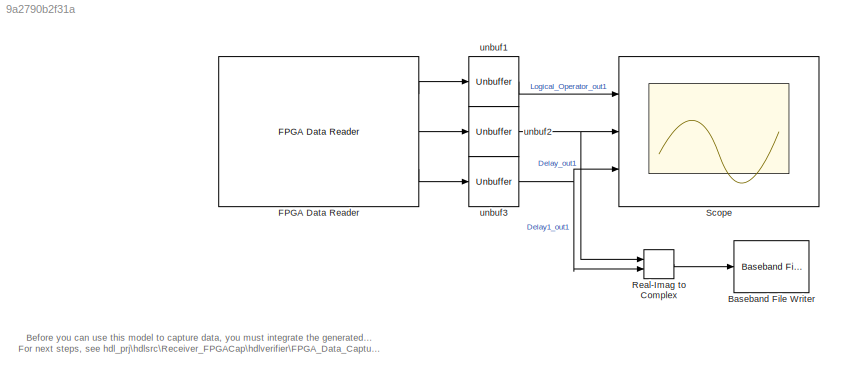
MODEL slx_9a2790b2f31a
KIND model
CONFIG AbsTol = auto
CONFIG EnableMultiTasking = off
CONFIG FixedStep = auto
CONFIG MaxStep = auto
CONFIG MinStep = auto
CONFIG RelTol = 1e-3
CONFIG SampleTimeConstraint = Unconstrained
CONFIG Solver = VariableStepAuto
CONFIG SolverName = VariableStepAuto
CONFIG StartTime = 0.0
CONFIG StopTime = 1
BLOCK [Reference] Baseband File Writer  REF=commsink2/Baseband File Writer
  Ports = [1]
  SourceBlock = commsink2/Baseband File Writer
  SourceProductBaseCode = CM
  SourceProductName = Communications System Toolbox
  SourceType = Baseband File Writer
BLOCK [Reference] FPGA Data Reader  REF=hdlverifier_fpga_reader/FPGA Data Reader
  Ports = [0, 3]
  SourceBlock = hdlverifier_fpga_reader/FPGA Data Reader
  SourceType = hdlverifier.internal.DataCapture.SimulinkBlock
BLOCK [RealImagToComplex] Real-Imag to Complex
  Ports = [2, 1]
BLOCK [Scope] Scope
  NumInputPorts = 3
  Ports = [3]
  ScopeSpecificationString = Simulink.scopes.TimeScopeBlockCfg('CurrentConfiguration', extmgr.ConfigurationSet(extmgr.Configuration('Core','General UI',true),extmgr.Configuration('Core','Source UI',true),extmgr.Configuration('Sources','WiredSimulink',true),extmgr.Configuration('Visuals','Time Domain',true,'SerializedDisplays',{struct('MinYLimReal','-0.125','MaxYLimReal','1.125','YLabelReal','','MinYLimMag','0.00000','MaxYLimM...<+2100ch>
BLOCK [Unbuffer] unbuf1
  Ports = [1, 1]
BLOCK [Unbuffer] unbuf2
  Ports = [1, 1]
BLOCK [Unbuffer] unbuf3
  Ports = [1, 1]
ANNOTATION (root): Before you can use this model to capture data, you must integrate the generated IP into your FPGA design. For next steps, see hdl_prj\hdlsrc\Receiver_FPGACap\hdlverifier\FPGA_Data_Capture_Component_Generation_Report.html .
LINE FPGA Data Reader:1 -> unbuf1:1
LINE FPGA Data Reader:2 -> unbuf2:1
LINE FPGA Data Reader:3 -> unbuf3:1
LINE Real-Imag to Complex:1 -> Baseband File Writer:1
LINE unbuf1:1 -> Scope:1
NET unbuf2:1 -> Real-Imag to Complex:1, Scope:2
NET unbuf3:1 -> Real-Imag to Complex:2, Scope:3
note: NET lines group one-source signal fan-out (src -> all destinations, sorted); 1:1 wires keep LINE
